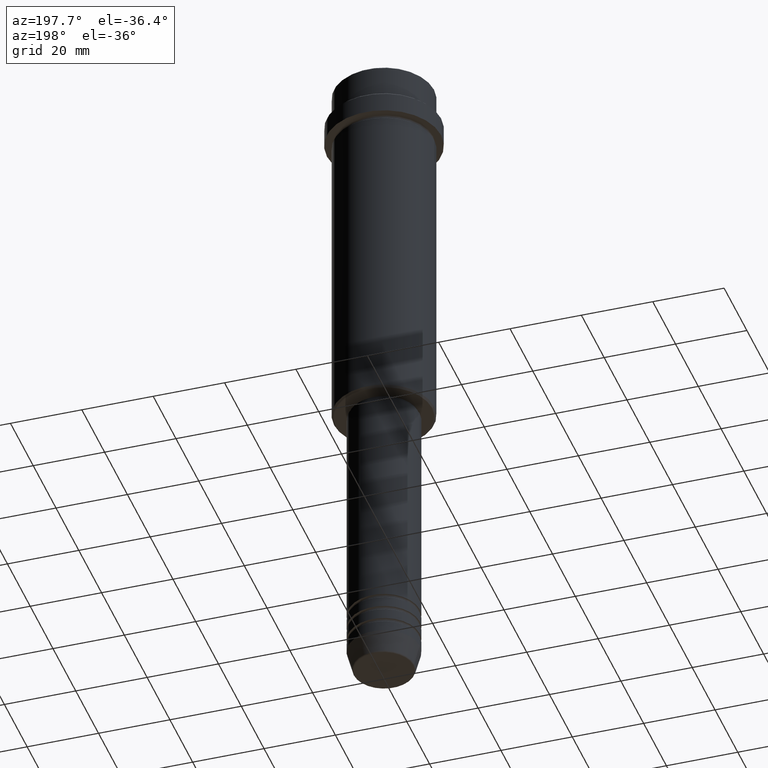
[diagram: clean part render]
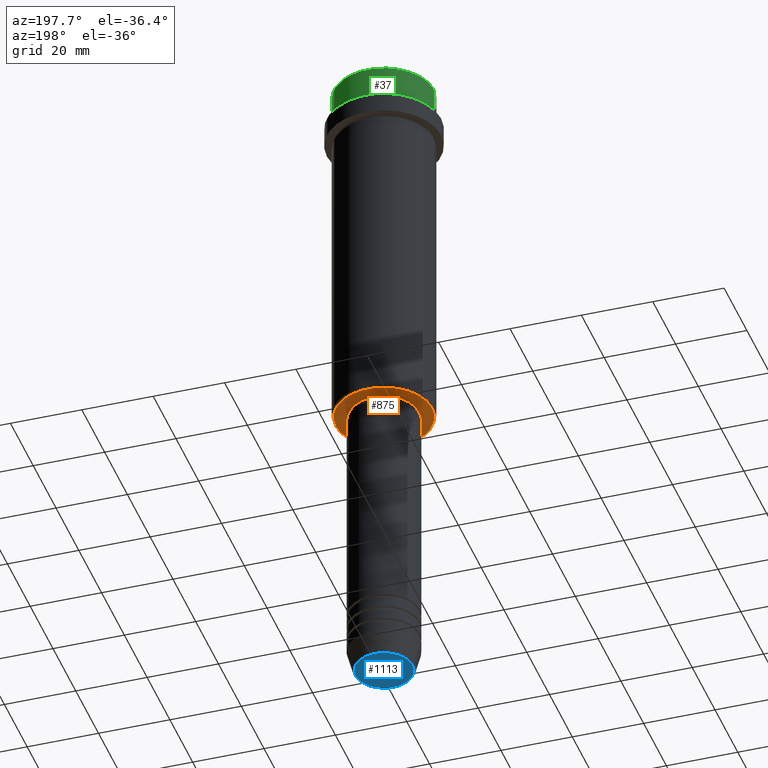
[diagram: same view with three faces highlighted in distinct colors, each labeled with its STEP entity id]
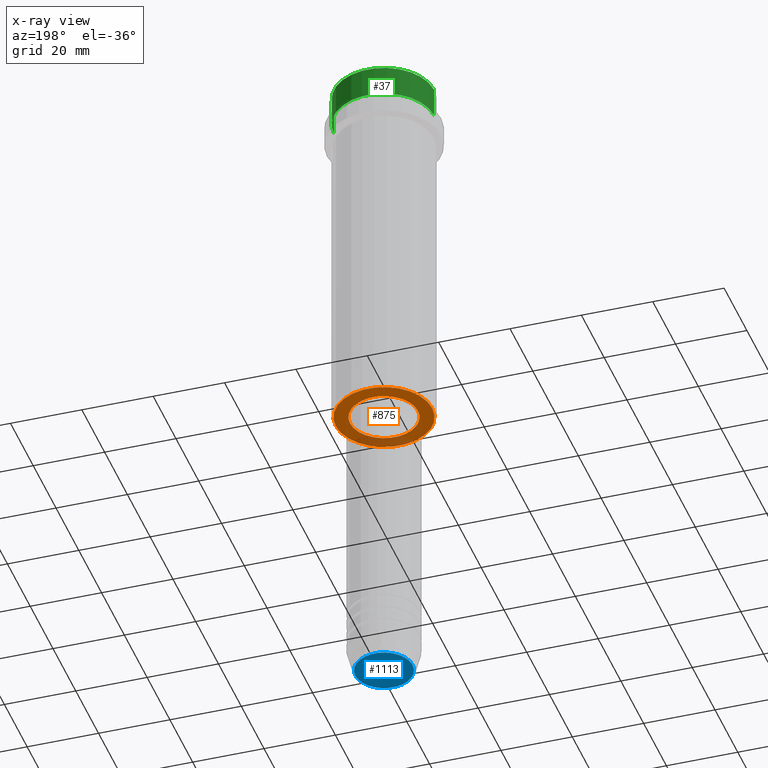
[diagram: x-ray of the same camera — body ghosted, the three highlighted faces saturated]
A machine part, auxiliary view with three faces highlighted in distinct colors.
The next image is the same camera in x-ray (body ghosted, the three faces saturated) — at least one of them is partly hidden behind the body in this view.
Their STEP definitions:

[orange] entity #875 — the highlighted planar face has unit normal (0, 0, -1).
#9 = CIRCLE ( 'NONE', #197, 13.49999999999995737 ) ;
#76 = DIRECTION ( 'NONE',  ( 1.000000000000000000, 0.000000000000000000, 0.000000000000000000 ) ) ;
#102 = ORIENTED_EDGE ( 'NONE', *, *, #1088, .T. ) ;
#166 = DIRECTION ( 'NONE',  ( -0.000000000000000000, -0.000000000000000000, 1.000000000000000000 ) ) ;
#175 = CARTESIAN_POINT ( 'NONE',  ( 0.000000000000000000, 0.000000000000000000, -106.0000000000000000 ) ) ;
#197 = AXIS2_PLACEMENT_3D ( 'NONE', #175, #1347, #597 ) ;
#230 = CARTESIAN_POINT ( 'NONE',  ( 0.000000000000000000, 0.000000000000000000, -106.0000000000000000 ) ) ;
#267 = CIRCLE ( 'NONE', #420, 9.499999999999996447 ) ;
#274 = EDGE_CURVE ( 'NONE', #1357, #395, #9, .T. ) ;
#318 = EDGE_CURVE ( 'NONE', #404, #727, #267, .T. ) ;
#391 = PLANE ( 'NONE',  #430 ) ;
#395 = VERTEX_POINT ( 'NONE', #544 ) ;
#404 = VERTEX_POINT ( 'NONE', #921 ) ;
#420 = AXIS2_PLACEMENT_3D ( 'NONE', #908, #1359, #915 ) ;
#430 = AXIS2_PLACEMENT_3D ( 'NONE', #1242, #928, #1363 ) ;
#431 = ORIENTED_EDGE ( 'NONE', *, *, #274, .T. ) ;
#544 = CARTESIAN_POINT ( 'NONE',  ( 13.49999999999995737, 0.000000000000000000, -106.0000000000000000 ) ) ;
#564 = ORIENTED_EDGE ( 'NONE', *, *, #717, .T. ) ;
#584 = DIRECTION ( 'NONE',  ( -1.000000000000000000, 0.000000000000000000, 0.000000000000000000 ) ) ;
#597 = DIRECTION ( 'NONE',  ( -1.000000000000000000, 0.000000000000000000, 0.000000000000000000 ) ) ;
#645 = CARTESIAN_POINT ( 'NONE',  ( -13.49999999999995737, 1.683889348827607301E-15, -106.0000000000000000 ) ) ;
#655 = ORIENTED_EDGE ( 'NONE', *, *, #318, .T. ) ;
#694 = EDGE_LOOP ( 'NONE', ( #564, #431 ) ) ;
#717 = EDGE_CURVE ( 'NONE', #395, #1357, #1368, .T. ) ;
#727 = VERTEX_POINT ( 'NONE', #1254 ) ;
#806 = FACE_BOUND ( 'NONE', #938, .T. ) ;
#875 = ADVANCED_FACE ( 'NONE', ( #1391, #806 ), #391, .T. ) ;
#908 = CARTESIAN_POINT ( 'NONE',  ( 0.000000000000000000, 0.000000000000000000, -106.0000000000000000 ) ) ;
#915 = DIRECTION ( 'NONE',  ( 1.000000000000000000, 0.000000000000000000, 0.000000000000000000 ) ) ;
#921 = CARTESIAN_POINT ( 'NONE',  ( -9.499999999999996447, 1.163414459189985091E-15, -106.0000000000000000 ) ) ;
#928 = DIRECTION ( 'NONE',  ( 0.000000000000000000, 0.000000000000000000, -1.000000000000000000 ) ) ;
#938 = EDGE_LOOP ( 'NONE', ( #102, #655 ) ) ;
#968 = DIRECTION ( 'NONE',  ( 0.000000000000000000, 0.000000000000000000, -1.000000000000000000 ) ) ;
#1047 = CIRCLE ( 'NONE', #1365, 9.499999999999996447 ) ;
#1088 = EDGE_CURVE ( 'NONE', #727, #404, #1047, .T. ) ;
#1137 = CARTESIAN_POINT ( 'NONE',  ( 0.000000000000000000, 0.000000000000000000, -106.0000000000000000 ) ) ;
#1242 = CARTESIAN_POINT ( 'NONE',  ( 0.000000000000000000, 14.00000000000000000, -106.0000000000000000 ) ) ;
#1254 = CARTESIAN_POINT ( 'NONE',  ( 9.499999999999996447, 0.000000000000000000, -106.0000000000000000 ) ) ;
#1347 = DIRECTION ( 'NONE',  ( 0.000000000000000000, 0.000000000000000000, -1.000000000000000000 ) ) ;
#1357 = VERTEX_POINT ( 'NONE', #645 ) ;
#1359 = DIRECTION ( 'NONE',  ( -0.000000000000000000, -0.000000000000000000, 1.000000000000000000 ) ) ;
#1363 = DIRECTION ( 'NONE',  ( -1.000000000000000000, 0.000000000000000000, -0.000000000000000000 ) ) ;
#1365 = AXIS2_PLACEMENT_3D ( 'NONE', #1137, #166, #76 ) ;
#1368 = CIRCLE ( 'NONE', #1397, 13.49999999999995737 ) ;
#1391 = FACE_OUTER_BOUND ( 'NONE', #694, .T. ) ;
#1397 = AXIS2_PLACEMENT_3D ( 'NONE', #230, #968, #584 ) ;

[blue] entity #1113 — the highlighted planar face has unit normal (0, -0, 1).
#169 = AXIS2_PLACEMENT_3D ( 'NONE', #965, #1313, #1192 ) ;
#246 = CARTESIAN_POINT ( 'NONE',  ( -8.008641351423783306, 1.010348648938493172E-15, -190.0000000000000000 ) ) ;
#275 = CARTESIAN_POINT ( 'NONE',  ( 8.008641351423783306, 0.000000000000000000, -190.0000000000000000 ) ) ;
#547 = DIRECTION ( 'NONE',  ( 1.000000000000000000, 0.000000000000000000, 0.000000000000000000 ) ) ;
#617 = CARTESIAN_POINT ( 'NONE',  ( 0.000000000000000000, 0.000000000000000000, -190.0000000000000000 ) ) ;
#631 = EDGE_CURVE ( 'NONE', #999, #665, #1098, .T. ) ;
#641 = DIRECTION ( 'NONE',  ( 0.000000000000000000, -0.000000000000000000, 1.000000000000000000 ) ) ;
#665 = VERTEX_POINT ( 'NONE', #246 ) ;
#699 = DIRECTION ( 'NONE',  ( 1.000000000000000000, 0.000000000000000000, 0.000000000000000000 ) ) ;
#757 = CARTESIAN_POINT ( 'NONE',  ( 0.000000000000000000, 0.000000000000000000, -190.0000000000000000 ) ) ;
#846 = CIRCLE ( 'NONE', #998, 8.008641351423783306 ) ;
#890 = EDGE_LOOP ( 'NONE', ( #1226, #1040 ) ) ;
#922 = AXIS2_PLACEMENT_3D ( 'NONE', #757, #641, #547 ) ;
#965 = CARTESIAN_POINT ( 'NONE',  ( 0.000000000000000000, 0.000000000000000000, -190.0000000000000000 ) ) ;
#998 = AXIS2_PLACEMENT_3D ( 'NONE', #617, #1041, #699 ) ;
#999 = VERTEX_POINT ( 'NONE', #275 ) ;
#1040 = ORIENTED_EDGE ( 'NONE', *, *, #1080, .T. ) ;
#1041 = DIRECTION ( 'NONE',  ( 0.000000000000000000, 0.000000000000000000, -1.000000000000000000 ) ) ;
#1080 = EDGE_CURVE ( 'NONE', #665, #999, #846, .T. ) ;
#1098 = CIRCLE ( 'NONE', #169, 8.008641351423783306 ) ;
#1113 = ADVANCED_FACE ( 'NONE', ( #1199 ), #1400, .F. ) ;
#1192 = DIRECTION ( 'NONE',  ( 1.000000000000000000, 0.000000000000000000, 0.000000000000000000 ) ) ;
#1199 = FACE_OUTER_BOUND ( 'NONE', #890, .T. ) ;
#1226 = ORIENTED_EDGE ( 'NONE', *, *, #631, .T. ) ;
#1313 = DIRECTION ( 'NONE',  ( 0.000000000000000000, 0.000000000000000000, -1.000000000000000000 ) ) ;
#1400 = PLANE ( 'NONE',  #922 ) ;

[green] entity #37 — the highlighted cylindrical surface (partial cylindrical patch) has radius 14 mm, axis along (-0, -0, 1).
#18 = LINE ( 'NONE', #322, #883 ) ;
#29 = CIRCLE ( 'NONE', #771, 13.99999999999997513 ) ;
#37 = ADVANCED_FACE ( 'NONE', ( #552 ), #856, .T. ) ;
#61 = CARTESIAN_POINT ( 'NONE',  ( 13.99999999999998757, 0.000000000000000000, -0.4999999999999970024 ) ) ;
#68 = LINE ( 'NONE', #374, #1006 ) ;
#74 = DIRECTION ( 'NONE',  ( 1.000000000000000000, 0.000000000000000000, 0.000000000000000000 ) ) ;
#80 = ORIENTED_EDGE ( 'NONE', *, *, #314, .T. ) ;
#85 = CARTESIAN_POINT ( 'NONE',  ( -13.99999999999998757, 1.714505518806293060E-15, -0.4999999999999970024 ) ) ;
#114 = DIRECTION ( 'NONE',  ( -0.000000000000000000, -0.000000000000000000, 1.000000000000000000 ) ) ;
#193 = VERTEX_POINT ( 'NONE', #301 ) ;
#287 = CIRCLE ( 'NONE', #1082, 13.99999999999998757 ) ;
#297 = VERTEX_POINT ( 'NONE', #61 ) ;
#301 = CARTESIAN_POINT ( 'NONE',  ( 13.99999999999997513, 0.000000000000000000, -8.999999999999998224 ) ) ;
#305 = AXIS2_PLACEMENT_3D ( 'NONE', #1294, #1417, #340 ) ;
#314 = EDGE_CURVE ( 'NONE', #1179, #953, #68, .T. ) ;
#322 = CARTESIAN_POINT ( 'NONE',  ( 13.99999999999998757, 0.000000000000000000, 0.000000000000000000 ) ) ;
#340 = DIRECTION ( 'NONE',  ( 1.000000000000000000, 0.000000000000000000, 0.000000000000000000 ) ) ;
#373 = ORIENTED_EDGE ( 'NONE', *, *, #490, .T. ) ;
#374 = CARTESIAN_POINT ( 'NONE',  ( -13.99999999999998757, 1.714505518806293060E-15, 0.000000000000000000 ) ) ;
#378 = DIRECTION ( 'NONE',  ( 1.000000000000000000, 0.000000000000000000, 0.000000000000000000 ) ) ;
#482 = EDGE_LOOP ( 'NONE', ( #373, #80, #1317, #838 ) ) ;
#490 = EDGE_CURVE ( 'NONE', #193, #1179, #29, .T. ) ;
#524 = DIRECTION ( 'NONE',  ( 0.000000000000000000, 0.000000000000000000, -1.000000000000000000 ) ) ;
#552 = FACE_OUTER_BOUND ( 'NONE', #482, .T. ) ;
#661 = CARTESIAN_POINT ( 'NONE',  ( -13.99999999999997513, 1.714505518806292271E-15, -8.999999999999998224 ) ) ;
#719 = CARTESIAN_POINT ( 'NONE',  ( 0.000000000000000000, 0.000000000000000000, -0.4999999999999970024 ) ) ;
#749 = EDGE_CURVE ( 'NONE', #193, #297, #18, .T. ) ;
#771 = AXIS2_PLACEMENT_3D ( 'NONE', #1342, #982, #378 ) ;
#838 = ORIENTED_EDGE ( 'NONE', *, *, #749, .F. ) ;
#856 = CYLINDRICAL_SURFACE ( 'NONE', #305, 13.99999999999998757 ) ;
#883 = VECTOR ( 'NONE', #114, 1000.000000000000000 ) ;
#953 = VERTEX_POINT ( 'NONE', #85 ) ;
#982 = DIRECTION ( 'NONE',  ( -0.000000000000000000, -0.000000000000000000, 1.000000000000000000 ) ) ;
#1006 = VECTOR ( 'NONE', #1028, 1000.000000000000000 ) ;
#1028 = DIRECTION ( 'NONE',  ( -0.000000000000000000, -0.000000000000000000, 1.000000000000000000 ) ) ;
#1082 = AXIS2_PLACEMENT_3D ( 'NONE', #719, #524, #74 ) ;
#1179 = VERTEX_POINT ( 'NONE', #661 ) ;
#1294 = CARTESIAN_POINT ( 'NONE',  ( 0.000000000000000000, 0.000000000000000000, 0.000000000000000000 ) ) ;
#1317 = ORIENTED_EDGE ( 'NONE', *, *, #1371, .T. ) ;
#1342 = CARTESIAN_POINT ( 'NONE',  ( 0.000000000000000000, 0.000000000000000000, -8.999999999999998224 ) ) ;
#1371 = EDGE_CURVE ( 'NONE', #953, #297, #287, .T. ) ;
#1417 = DIRECTION ( 'NONE',  ( -0.000000000000000000, -0.000000000000000000, 1.000000000000000000 ) ) ;